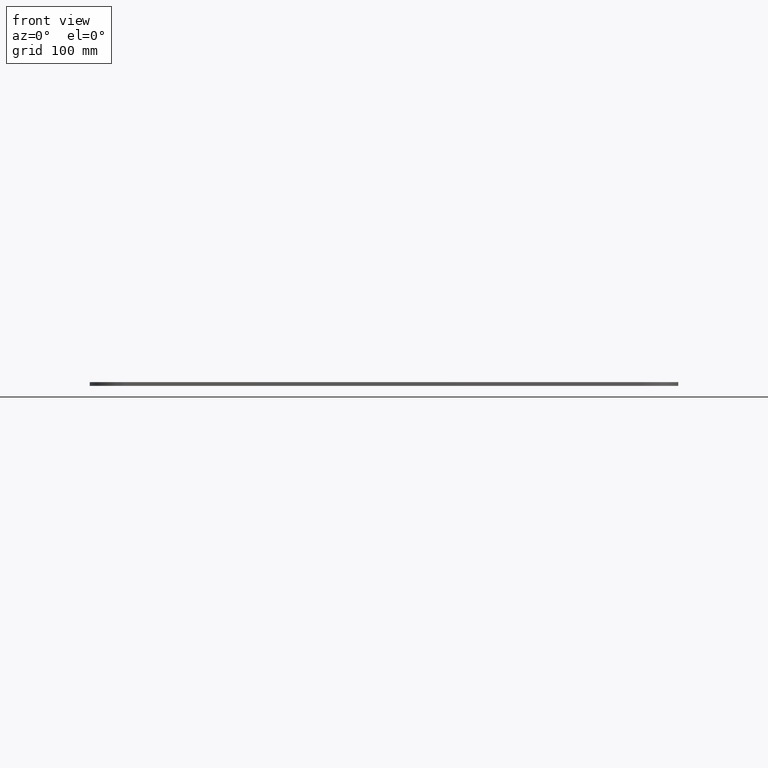
[diagram: clean part render]
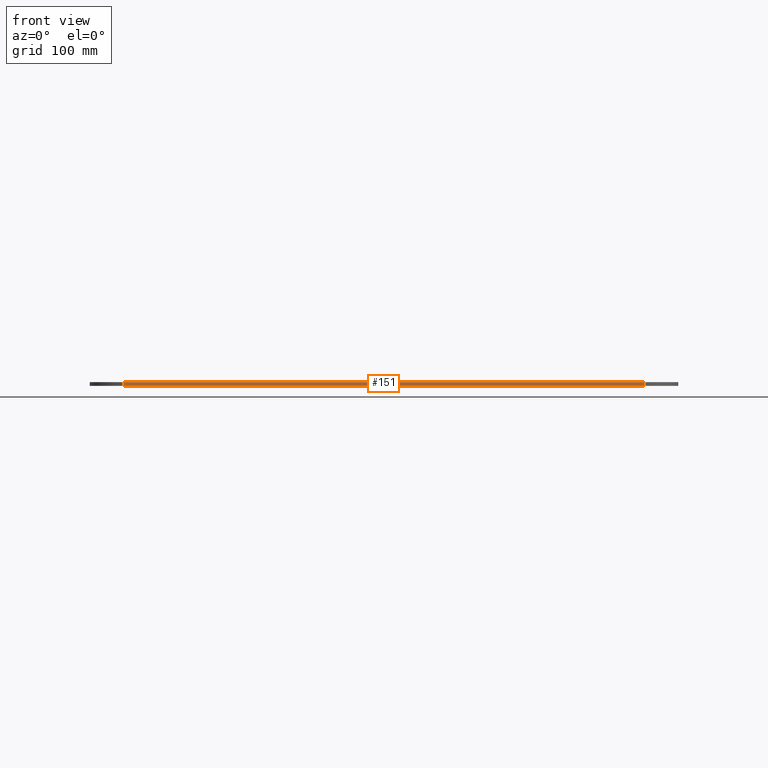
[diagram: same view with one face highlighted and labeled with its STEP entity id]
A machine part, front view. The second image highlights one B-rep face of the part: STEP entity #151.
In plain terms, the highlighted planar face has unit normal (0, -1, 0).
Its self-contained STEP definition (entity closure, byte-faithful):
#121=PLANE('',#698);
#151=ADVANCED_FACE('',(#187),#121,.T.);
#187=FACE_OUTER_BOUND('',#237,.T.);
#237=EDGE_LOOP('',(#384,#385,#386,#387));
#284=LINE('',#888,#300);
#297=LINE('',#928,#313);
#298=LINE('',#1030,#314);
#299=LINE('',#1031,#315);
#300=VECTOR('',#708,1.);
#313=VECTOR('',#747,1.);
#314=VECTOR('',#870,1.);
#315=VECTOR('',#871,1.);
#384=ORIENTED_EDGE('',*,*,#568,.F.);
#385=ORIENTED_EDGE('',*,*,#527,.F.);
#386=ORIENTED_EDGE('',*,*,#569,.T.);
#387=ORIENTED_EDGE('',*,*,#507,.T.);
#448=VERTEX_POINT('',#886);
#450=VERTEX_POINT('',#889);
#462=VERTEX_POINT('',#925);
#463=VERTEX_POINT('',#927);
#507=EDGE_CURVE('',#450,#448,#284,.T.);
#527=EDGE_CURVE('',#463,#462,#297,.T.);
#568=EDGE_CURVE('',#462,#448,#298,.T.);
#569=EDGE_CURVE('',#463,#450,#299,.T.);
#698=AXIS2_PLACEMENT_3D('',#1032,#872,#873);
#708=DIRECTION('',(0.,0.,-1.));
#747=DIRECTION('',(0.,0.,-1.));
#870=DIRECTION('',(-1.,0.,0.));
#871=DIRECTION('',(-1.,0.,0.));
#872=DIRECTION('',(0.,-1.,0.));
#873=DIRECTION('',(0.,0.,-1.));
#886=CARTESIAN_POINT('',(730.,-3225.,0.));
#888=CARTESIAN_POINT('',(730.,-3225.,4.));
#889=CARTESIAN_POINT('',(730.,-3225.,4.));
#925=CARTESIAN_POINT('',(1270.,-3225.,0.));
#927=CARTESIAN_POINT('',(1270.,-3225.,4.));
#928=CARTESIAN_POINT('',(1270.,-3225.,4.));
#1030=CARTESIAN_POINT('',(1270.,-3225.,0.));
#1031=CARTESIAN_POINT('',(1270.,-3225.,4.));
#1032=CARTESIAN_POINT('',(1270.,-3225.,4.));